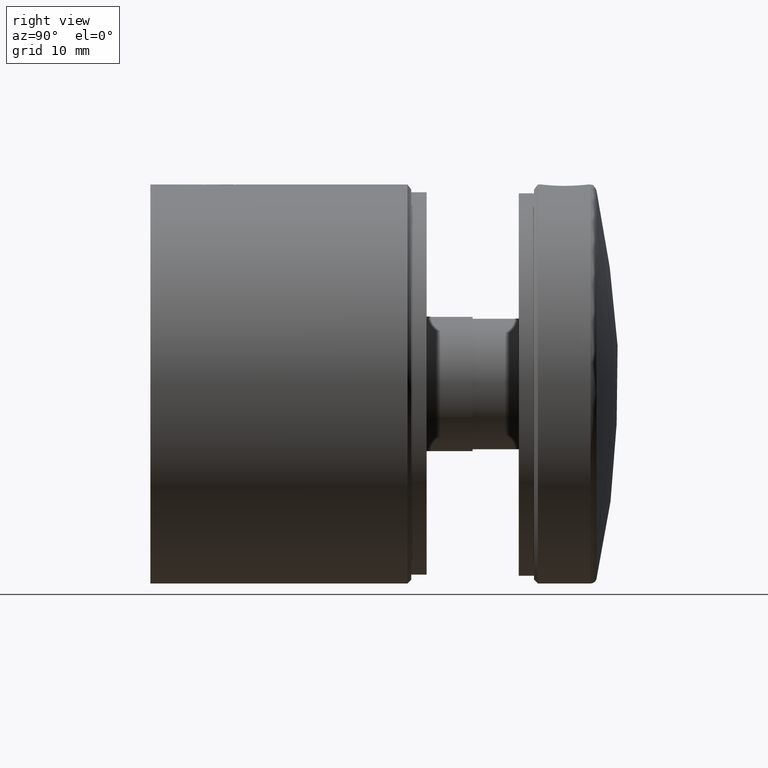
[diagram: clean part render]
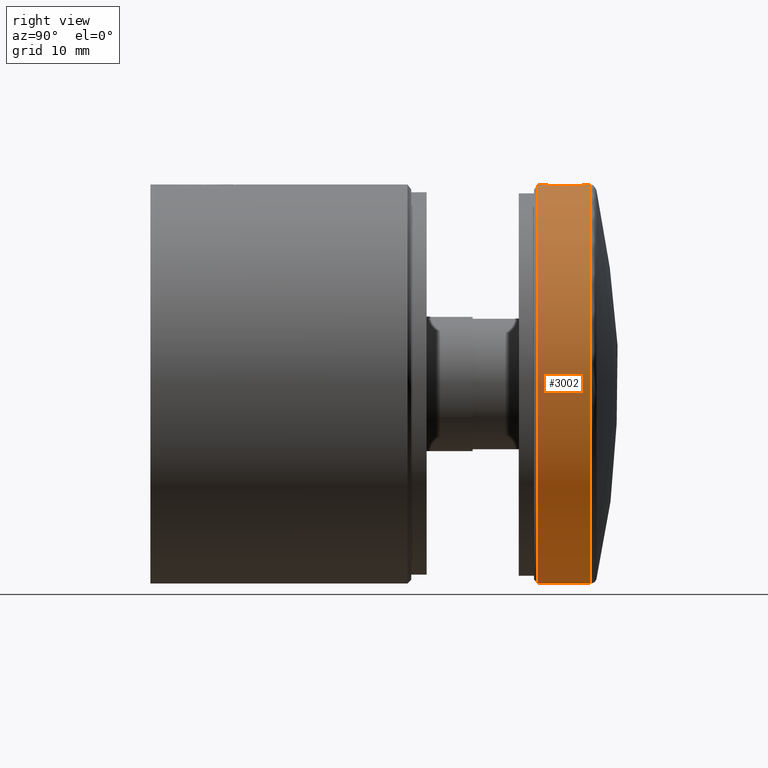
[diagram: same view with one face highlighted and labeled with its STEP entity id]
A machine part, right view. The second image highlights one B-rep face of the part: STEP entity #3002.
In plain terms, the highlighted cylindrical surface (bore or boss wall) has radius 26 mm, axis along (-0, -1, -0).
Its self-contained STEP definition (entity closure, byte-faithful):
#227 = CARTESIAN_POINT ( 'NONE',  ( 2.999999999999998200, 12.00000000000000400, 25.82634314028990700 ) ) ;
#420 = CARTESIAN_POINT ( 'NONE',  ( 2.259367191999813100, 10.01669791220003300, 25.90201740359187700 ) ) ;
#490 = CARTESIAN_POINT ( 'NONE',  ( -2.846869066070606600, 12.96618901026842300, 25.84378029847802300 ) ) ;
#565 = CARTESIAN_POINT ( 'NONE',  ( -2.604463692874475500, 13.50188135155126500, 25.86945821533744500 ) ) ;
#631 = CARTESIAN_POINT ( 'NONE',  ( -0.7796045846363183200, 14.90352505264683300, 25.98901706987855300 ) ) ;
#701 = CARTESIAN_POINT ( 'NONE',  ( -0.9650708797723882600, 9.152667001800409700, 25.98271963183761500 ) ) ;
#762 = CYLINDRICAL_SURFACE ( 'NONE', #10625, 25.99999999999999600 ) ;
#1128 = ORIENTED_EDGE ( 'NONE', *, *, #16087, .F. ) ;
#1263 = FACE_BOUND ( 'NONE', #8609, .T. ) ;
#2009 = CARTESIAN_POINT ( 'NONE',  ( -2.980222010311326800, 11.60407909247042300, 25.82866189750345500 ) ) ;
#2073 = CARTESIAN_POINT ( 'NONE',  ( -0.1941723281477192600, 8.999892428313810200, 26.00001241211576900 ) ) ;
#2140 = CARTESIAN_POINT ( 'NONE',  ( -0.3960800891403077900, 14.98016133837085600, 25.99769051530946100 ) ) ;
#2213 = CARTESIAN_POINT ( 'NONE',  ( 2.902928602409402500, 12.78238175261913400, 25.83746369126679500 ) ) ;
#2292 = CARTESIAN_POINT ( 'NONE',  ( -0.2011044140179882600, 14.99981532888682500, 25.99997869180358400 ) ) ;
#2648 = ORIENTED_EDGE ( 'NONE', *, *, #17449, .T. ) ;
#3002 = ADVANCED_FACE ( 'NONE', ( #1263, #4000, #8757 ), #762, .T. ) ;
#3139 = ORIENTED_EDGE ( 'NONE', *, *, #5798, .T. ) ;
#3629 = CARTESIAN_POINT ( 'NONE',  ( 2.695823260802125100, 10.66913855475554700, 25.85997437936805500 ) ) ;
#3700 = CARTESIAN_POINT ( 'NONE',  ( -1.831066051039929900, 14.38444682875305200, 25.93595623023574200 ) ) ;
#3775 = CARTESIAN_POINT ( 'NONE',  ( 0.1955564443005259300, 15.00018210611529500, 26.00002101223516600 ) ) ;
#3832 = CARTESIAN_POINT ( 'NONE',  ( 2.695137482997141300, 13.33206515851895400, 25.86004491185303800 ) ) ;
#3903 = CARTESIAN_POINT ( 'NONE',  ( -2.385483644065929300, 13.82984876575435300, 25.89056907961826300 ) ) ;
#4000 = FACE_OUTER_BOUND ( 'NONE', #13768, .T. ) ;
#4196 = CARTESIAN_POINT ( 'NONE',  ( 0.0000000000000000000, 15.36369618043120500, 0.0000000000000000000 ) ) ;
#4333 = CARTESIAN_POINT ( 'NONE',  ( 0.0000000000000000000, 0.0000000000000000000, 0.0000000000000000000 ) ) ;
#4862 = CIRCLE ( 'NONE', #18965, 25.99999999999999600 ) ;
#5237 = CARTESIAN_POINT ( 'NONE',  ( 0.9687707735393102900, 9.154012067514830900, 25.98257320991144300 ) ) ;
#5308 = CARTESIAN_POINT ( 'NONE',  ( -2.981150286349718100, 12.38951300162672100, 25.82855464327465000 ) ) ;
#5375 = CARTESIAN_POINT ( 'NONE',  ( 0.9650574209274815900, 14.84733694668936200, 25.98272007820417100 ) ) ;
#5441 = CARTESIAN_POINT ( 'NONE',  ( 2.999999999999998200, 12.19837139123400300, 25.82634314028991100 ) ) ;
#5518 = CARTESIAN_POINT ( 'NONE',  ( 1.826971693114298500, 14.38759081562333200, 25.93624649503413700 ) ) ;
#5798 = EDGE_CURVE ( 'NONE', #20577, #20577, #6895, .T. ) ;
#5925 = DIRECTION ( 'NONE',  ( -0.0000000000000000000, -1.000000000000000000, -0.0000000000000000000 ) ) ;
#6789 = VERTEX_POINT ( 'NONE', #17323 ) ;
#6841 = CARTESIAN_POINT ( 'NONE',  ( 1.982834401776012000, 9.740222352776619600, 25.92465261906889400 ) ) ;
#6895 = B_SPLINE_CURVE_WITH_KNOTS ( 'NONE', 3,
 ( #227, #9865, #13151, #11625, #16404, #3629, #14812, #8658, #420, #6841, #10004, #6909, #7050, #5237, #8447, #19695, #10293, #2073, #8730, #18224, #701, #15084, #18018, #18146, #13350, #8522, #19624, #13491, #19838, #10141, #13217, #2009, #11897, #18297, #5308, #10072, #490, #18077, #565, #3903, #11696, #13291, #3700, #14876, #16481, #11766, #631, #2140, #2292, #3775, #8587, #14949, #5375, #16556, #6975, #5518, #19772, #16692, #10212, #7118, #3832, #11833, #2213, #15027, #5441, #13419 ),
 .UNSPECIFIED., .T., .F.,
 ( 4, 2, 2, 2, 2, 2, 2, 2, 2, 2, 2, 2, 2, 2, 2, 2, 2, 2, 2, 2, 2, 2, 2, 2, 2, 2, 2, 2, 2, 2, 2, 2, 4 ),
 ( 0.0000000000000000000, 0.0005866289597237314300, 0.001173257919447462900, 0.001759886879171194200, 0.002346515838894925700, 0.002933144798618657300, 0.003519773758342388400, 0.004106402718066119900, 0.004693031677789851400, 0.005279660637513583000, 0.005866289597237314500, 0.006452918556961046100, 0.007039547516684776700, 0.007626176476408508300, 0.008212805436132239800, 0.008799434395855971300, 0.009386063355579702900, 0.009972692315303434400, 0.01055932127502716600, 0.01114595023475089700, 0.01173257919447462900, 0.01231920815419836100, 0.01290583711392209200, 0.01349246607364582400, 0.01407909503336955300, 0.01466572399309328500, 0.01525235295281701700, 0.01583898191254075000, 0.01642561087226448000, 0.01701223983198821300, 0.01759886879171194300, 0.01818549775143567600, 0.01877212671115940600 ),
 .UNSPECIFIED. ) ;
#6909 = CARTESIAN_POINT ( 'NONE',  ( 1.504046466543745400, 9.396782041410565600, 25.95698036821285700 ) ) ;
#6975 = CARTESIAN_POINT ( 'NONE',  ( 1.500791135884891100, 14.60500315484245700, 25.95716343873230900 ) ) ;
#7050 = CARTESIAN_POINT ( 'NONE',  ( 1.329678934057944200, 9.303684355303021300, 25.96660511796631700 ) ) ;
#7118 = CARTESIAN_POINT ( 'NONE',  ( 2.601881734802040700, 13.50635616854826400, 25.86971935331580500 ) ) ;
#7486 = DIRECTION ( 'NONE',  ( 0.0000000000000000000, 0.0000000000000000000, -1.000000000000000000 ) ) ;
#8447 = CARTESIAN_POINT ( 'NONE',  ( 0.7795573863352983600, 9.096333107480285600, 25.98903255766746100 ) ) ;
#8522 = CARTESIAN_POINT ( 'NONE',  ( -2.260506445678778700, 10.01775295283131100, 25.90192761446528600 ) ) ;
#8587 = CARTESIAN_POINT ( 'NONE',  ( 0.3907017863126575600, 14.98087292659182500, 25.99777258736625600 ) ) ;
#8609 = EDGE_LOOP ( 'NONE', ( #3139 ) ) ;
#8658 = CARTESIAN_POINT ( 'NONE',  ( 2.385970178955810100, 10.17091274813867400, 25.89052151725268700 ) ) ;
#8730 = CARTESIAN_POINT ( 'NONE',  ( -0.3931071775928753300, 9.019401675169609300, 25.99774064185299200 ) ) ;
#8757 = FACE_OUTER_BOUND ( 'NONE', #17875, .T. ) ;
#8800 = VERTEX_POINT ( 'NONE', #15793 ) ;
#9025 = DIRECTION ( 'NONE',  ( 0.0000000000000000000, 0.0000000000000000000, -1.000000000000000000 ) ) ;
#9526 = CARTESIAN_POINT ( 'NONE',  ( 2.999999999999998200, 12.00000000000000000, 25.82634314028991100 ) ) ;
#9865 = CARTESIAN_POINT ( 'NONE',  ( 2.999999999999997800, 11.80162860876600200, 25.82634314028990700 ) ) ;
#10004 = CARTESIAN_POINT ( 'NONE',  ( 1.831915627833455600, 9.616098859863344100, 25.93590312176944900 ) ) ;
#10072 = CARTESIAN_POINT ( 'NONE',  ( -2.904394120158766000, 12.77683473340630900, 25.83729836467457000 ) ) ;
#10141 = CARTESIAN_POINT ( 'NONE',  ( -2.846471190645790500, 11.03239790765421300, 25.84382593197624100 ) ) ;
#10212 = CARTESIAN_POINT ( 'NONE',  ( 2.382280341642609900, 13.83402231236238000, 25.89086534581342400 ) ) ;
#10293 = CARTESIAN_POINT ( 'NONE',  ( 0.1974822290173422800, 9.000108484639907800, 25.99998748254342100 ) ) ;
#10625 = AXIS2_PLACEMENT_3D ( 'NONE', #4333, #5925, #20321 ) ;
#10786 = DIRECTION ( 'NONE',  ( -0.0000000000000000000, -1.000000000000000000, -0.0000000000000000000 ) ) ;
#11625 = CARTESIAN_POINT ( 'NONE',  ( 2.904216902360977800, 11.22297140875059900, 25.83731794412976500 ) ) ;
#11696 = CARTESIAN_POINT ( 'NONE',  ( -2.261499722814582600, 13.98087377345776100, 25.90183065763340800 ) ) ;
#11766 = CARTESIAN_POINT ( 'NONE',  ( -0.9701622282910408200, 14.84559983677698400, 25.98252887103857500 ) ) ;
#11833 = CARTESIAN_POINT ( 'NONE',  ( 2.845128384431394600, 12.97129198230969000, 25.84397286354044700 ) ) ;
#11897 = CARTESIAN_POINT ( 'NONE',  ( -2.999926885587592000, 11.80302556514894800, 25.82635163329338100 ) ) ;
#12662 = CIRCLE ( 'NONE', #17329, 26.00000000000000000 ) ;
#13151 = CARTESIAN_POINT ( 'NONE',  ( 2.980518406029754300, 11.60660544119665600, 25.82862722626442000 ) ) ;
#13217 = CARTESIAN_POINT ( 'NONE',  ( -2.903294483696322400, 11.21938630763890300, 25.83742208091259600 ) ) ;
#13291 = CARTESIAN_POINT ( 'NONE',  ( -1.985208033414806100, 14.25769594204546600, 25.92447032201571100 ) ) ;
#13350 = CARTESIAN_POINT ( 'NONE',  ( -1.980419221218368000, 9.737892032816926500, 25.92484683164365200 ) ) ;
#13419 = CARTESIAN_POINT ( 'NONE',  ( 2.999999999999998200, 12.00000000000000400, 25.82634314028990700 ) ) ;
#13491 = CARTESIAN_POINT ( 'NONE',  ( -2.601817656857965000, 10.49377856474421700, 25.86972088012399200 ) ) ;
#13768 = EDGE_LOOP ( 'NONE', ( #1128 ) ) ;
#14812 = CARTESIAN_POINT ( 'NONE',  ( 2.603667476540609400, 10.49689336991925400, 25.86953563173866400 ) ) ;
#14876 = CARTESIAN_POINT ( 'NONE',  ( -1.505373951746086000, 14.60235255640465400, 25.95689653493614600 ) ) ;
#14949 = CARTESIAN_POINT ( 'NONE',  ( 0.7744147086170432000, 14.90491534289618200, 25.98917292353332100 ) ) ;
#15027 = CARTESIAN_POINT ( 'NONE',  ( 2.980516047926730300, 12.39451206010617500, 25.82862846835401200 ) ) ;
#15084 = CARTESIAN_POINT ( 'NONE',  ( -1.328482013767581000, 9.303001196752777700, 25.96667512040692900 ) ) ;
#15311 = DIRECTION ( 'NONE',  ( -0.0000000000000000000, -1.000000000000000000, -0.0000000000000000000 ) ) ;
#15793 = CARTESIAN_POINT ( 'NONE',  ( 0.0000000000000000000, 8.500000000000000000, -26.00000000000000000 ) ) ;
#16087 = EDGE_CURVE ( 'NONE', #8800, #8800, #12662, .T. ) ;
#16404 = CARTESIAN_POINT ( 'NONE',  ( 2.846458888054149000, 11.03236006772277000, 25.84382730467127200 ) ) ;
#16481 = CARTESIAN_POINT ( 'NONE',  ( -1.333240681001386400, 14.69464700226037500, 25.96643006980510600 ) ) ;
#16556 = CARTESIAN_POINT ( 'NONE',  ( 1.328453288779688900, 14.69701230497748400, 25.96667653642898400 ) ) ;
#16692 = CARTESIAN_POINT ( 'NONE',  ( 2.258024676797181200, 13.98483070465201400, 25.90213498332273200 ) ) ;
#17323 = CARTESIAN_POINT ( 'NONE',  ( 0.0000000000000000000, 15.36369618043120500, -25.99999999999999600 ) ) ;
#17329 = AXIS2_PLACEMENT_3D ( 'NONE', #20466, #10786, #9025 ) ;
#17449 = EDGE_CURVE ( 'NONE', #6789, #6789, #4862, .T. ) ;
#17875 = EDGE_LOOP ( 'NONE', ( #2648 ) ) ;
#18018 = CARTESIAN_POINT ( 'NONE',  ( -1.503943005669261500, 9.396862869047128100, 25.95697701017397900 ) ) ;
#18077 = CARTESIAN_POINT ( 'NONE',  ( -2.697477801571571000, 13.32732746258856200, 25.85980002059915300 ) ) ;
#18146 = CARTESIAN_POINT ( 'NONE',  ( -1.828850462055285200, 9.613899944619420900, 25.93611007954820700 ) ) ;
#18224 = CARTESIAN_POINT ( 'NONE',  ( -0.7779860760478930500, 9.095996333932689000, 25.98907057590951900 ) ) ;
#18297 = CARTESIAN_POINT ( 'NONE',  ( -3.000072698718975400, 12.19474097991231800, 25.82633469557358600 ) ) ;
#18965 = AXIS2_PLACEMENT_3D ( 'NONE', #4196, #15311, #7486 ) ;
#19624 = CARTESIAN_POINT ( 'NONE',  ( -2.384525331870829500, 10.16909938193571400, 25.89065376688521900 ) ) ;
#19695 = CARTESIAN_POINT ( 'NONE',  ( 0.3922386663974057300, 9.019204809134347300, 25.99776282357140300 ) ) ;
#19772 = CARTESIAN_POINT ( 'NONE',  ( 1.981300663533632500, 14.26112274055072100, 25.92477039080535000 ) ) ;
#19838 = CARTESIAN_POINT ( 'NONE',  ( -2.695847567316084400, 10.66918899084642500, 25.85997182781259000 ) ) ;
#20321 = DIRECTION ( 'NONE',  ( 0.0000000000000000000, 0.0000000000000000000, -1.000000000000000000 ) ) ;
#20466 = CARTESIAN_POINT ( 'NONE',  ( 0.0000000000000000000, 8.500000000000000000, 0.0000000000000000000 ) ) ;
#20577 = VERTEX_POINT ( 'NONE', #9526 ) ;